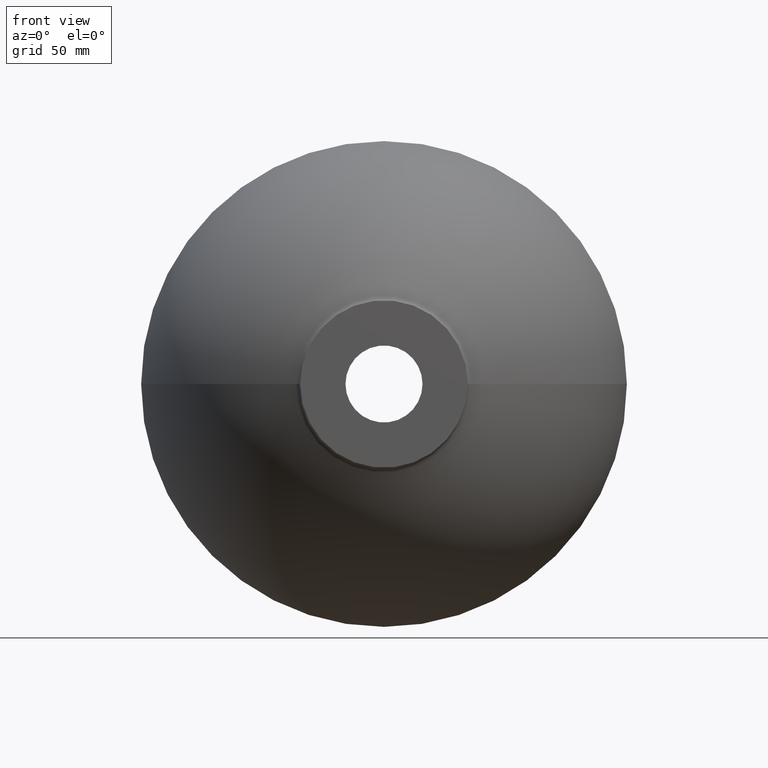
[diagram: clean part render]
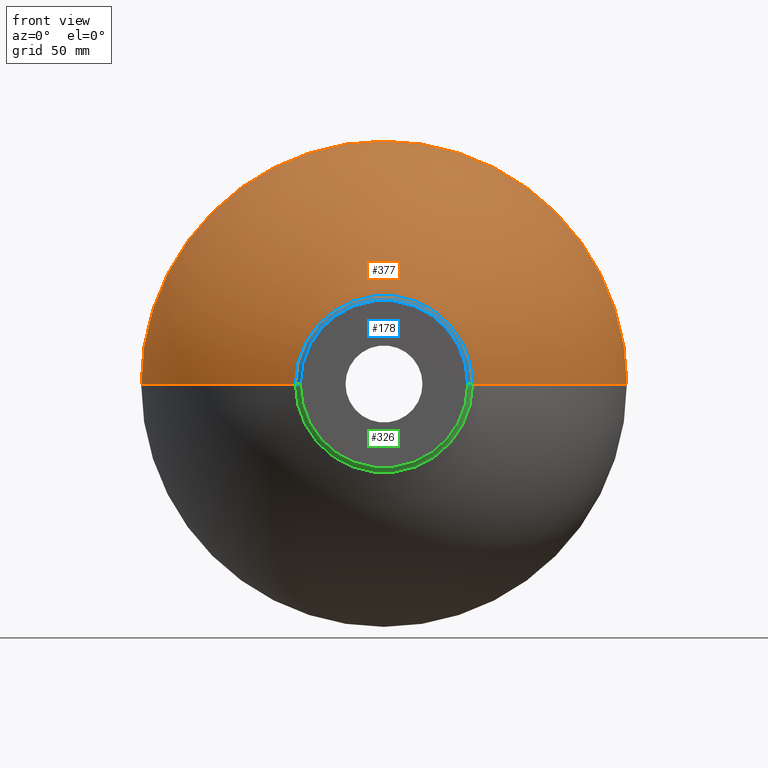
[diagram: same view with three faces highlighted in distinct colors, each labeled with its STEP entity id]
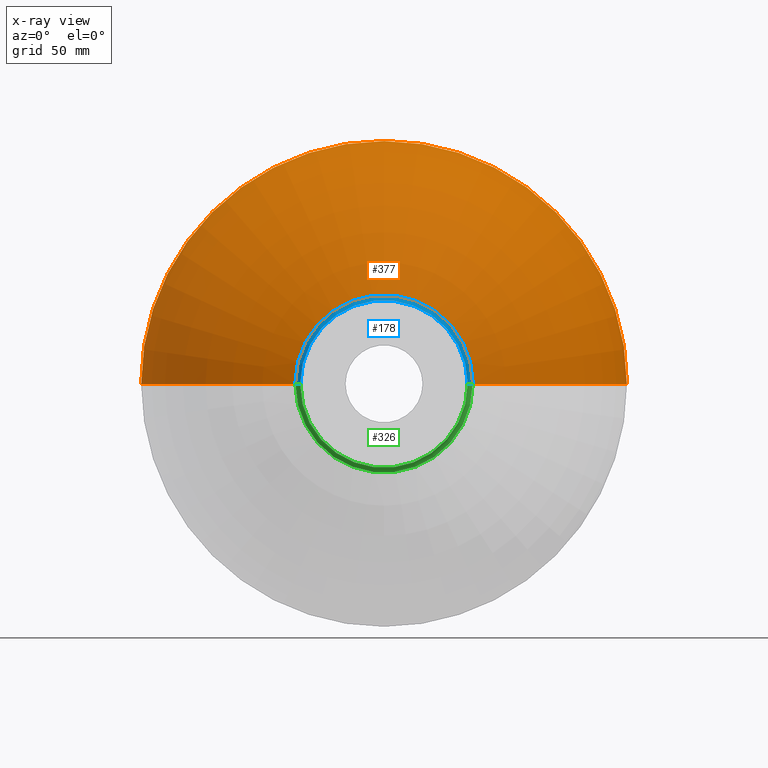
[diagram: x-ray of the same camera — body ghosted, the three highlighted faces saturated]
A machine part, front view with three faces highlighted in distinct colors.
The next image is the same camera in x-ray (body ghosted, the three faces saturated) — at least one of them is partly hidden behind the body in this view.
Their STEP definitions:

[orange] entity #377 — the highlighted toroidal blend (fillet) surface has major radius 13.1579 mm and minor (blend) radius 158.158 mm.
#2 = CARTESIAN_POINT ( 'NONE',  ( -52.91129032258071900, 6.303157817668902000, 0.0000000000000000000 ) ) ;
#17 = DIRECTION ( 'NONE',  ( -1.224646799147353200E-016, -1.352972573047500600E-032, 1.000000000000000000 ) ) ;
#19 = EDGE_CURVE ( 'NONE', #139, #449, #87, .T. ) ;
#26 = CARTESIAN_POINT ( 'NONE',  ( -2.694001388746044600E-015, 150.0000000000000000, 0.0000000000000000000 ) ) ;
#30 = DIRECTION ( 'NONE',  ( -1.104785946437366900E-016, 1.000000000000000000, -0.0000000000000000000 ) ) ;
#31 = CARTESIAN_POINT ( 'NONE',  ( -13.15789473684206400, 150.0000000000000000, -1.611377367299143200E-015 ) ) ;
#44 = AXIS2_PLACEMENT_3D ( 'NONE', #397, #370, #337 ) ;
#48 = TOROIDAL_SURFACE ( 'NONE', #436, -13.15789473684206000, 158.1578947368420800 ) ;
#54 = CIRCLE ( 'NONE', #439, 52.91129032258073300 ) ;
#62 = DIRECTION ( 'NONE',  ( -1.000000000000000000, -1.147492742834831600E-016, 0.0000000000000000000 ) ) ;
#84 = DIRECTION ( 'NONE',  ( -1.104785946437366900E-016, 1.000000000000000000, -0.0000000000000000000 ) ) ;
#85 = EDGE_CURVE ( 'NONE', #186, #139, #153, .T. ) ;
#86 = FACE_OUTER_BOUND ( 'NONE', #279, .T. ) ;
#87 = CIRCLE ( 'NONE', #329, 145.0000000000000000 ) ;
#92 = ORIENTED_EDGE ( 'NONE', *, *, #19, .F. ) ;
#139 = VERTEX_POINT ( 'NONE', #358 ) ;
#142 = DIRECTION ( 'NONE',  ( -1.104785946437366900E-016, 1.000000000000000000, -0.0000000000000000000 ) ) ;
#153 = CIRCLE ( 'NONE', #44, 158.1578947368420800 ) ;
#182 = EDGE_CURVE ( 'NONE', #300, #449, #428, .T. ) ;
#185 = ORIENTED_EDGE ( 'NONE', *, *, #430, .T. ) ;
#186 = VERTEX_POINT ( 'NONE', #2 ) ;
#188 = DIRECTION ( 'NONE',  ( -1.000000000000000000, -1.914177628664062900E-016, 0.0000000000000000000 ) ) ;
#207 = AXIS2_PLACEMENT_3D ( 'NONE', #31, #17, #214 ) ;
#214 = DIRECTION ( 'NONE',  ( 1.000000000000000000, 0.0000000000000000000, 1.224646799147353200E-016 ) ) ;
#215 = CARTESIAN_POINT ( 'NONE',  ( 145.0000000000000000, 150.0000000000000300, 1.775737858763661900E-014 ) ) ;
#238 = ORIENTED_EDGE ( 'NONE', *, *, #85, .F. ) ;
#265 = DIRECTION ( 'NONE',  ( -1.000000000000000000, -1.104785946437366800E-016, 0.0000000000000000000 ) ) ;
#279 = EDGE_LOOP ( 'NONE', ( #185, #418, #92, #238 ) ) ;
#281 = CARTESIAN_POINT ( 'NONE',  ( -3.469446951953614200E-015, 150.0000000000000000, 0.0000000000000000000 ) ) ;
#300 = VERTEX_POINT ( 'NONE', #385 ) ;
#329 = AXIS2_PLACEMENT_3D ( 'NONE', #26, #30, #188 ) ;
#337 = DIRECTION ( 'NONE',  ( -1.000000000000000000, 0.0000000000000000000, 0.0000000000000000000 ) ) ;
#357 = CARTESIAN_POINT ( 'NONE',  ( 1.318142379030071500E-014, 6.303157817668908300, 0.0000000000000000000 ) ) ;
#358 = CARTESIAN_POINT ( 'NONE',  ( -145.0000000000000000, 149.9999999999999700, 0.0000000000000000000 ) ) ;
#370 = DIRECTION ( 'NONE',  ( 0.0000000000000000000, -0.0000000000000000000, -1.000000000000000000 ) ) ;
#377 = ADVANCED_FACE ( 'NONE', ( #86 ), #48, .T. ) ;
#385 = CARTESIAN_POINT ( 'NONE',  ( 52.91129032258075400, 6.303157817668914500, 1.211857141043355500E-014 ) ) ;
#397 = CARTESIAN_POINT ( 'NONE',  ( 13.15789473684205600, 150.0000000000000000, 0.0000000000000000000 ) ) ;
#418 = ORIENTED_EDGE ( 'NONE', *, *, #182, .T. ) ;
#428 = CIRCLE ( 'NONE', #207, 158.1578947368420800 ) ;
#430 = EDGE_CURVE ( 'NONE', #186, #300, #54, .T. ) ;
#436 = AXIS2_PLACEMENT_3D ( 'NONE', #281, #84, #265 ) ;
#439 = AXIS2_PLACEMENT_3D ( 'NONE', #357, #142, #62 ) ;
#449 = VERTEX_POINT ( 'NONE', #215 ) ;

[blue] entity #178 — the highlighted toroidal blend (fillet) surface has major radius 55 mm and minor (blend) radius 5 mm.
#2 = CARTESIAN_POINT ( 'NONE',  ( -52.91129032258071900, 6.303157817668902000, 0.0000000000000000000 ) ) ;
#7 = DIRECTION ( 'NONE',  ( 0.0000000000000000000, -0.0000000000000000000, -1.000000000000000000 ) ) ;
#23 = EDGE_CURVE ( 'NONE', #300, #193, #325, .T. ) ;
#32 = AXIS2_PLACEMENT_3D ( 'NONE', #360, #187, #303 ) ;
#46 = CARTESIAN_POINT ( 'NONE',  ( 50.00000000000004300, 1.760329196264057000, 6.123233995736769200E-015 ) ) ;
#54 = CIRCLE ( 'NONE', #439, 52.91129032258073300 ) ;
#62 = DIRECTION ( 'NONE',  ( -1.000000000000000000, -1.147492742834831600E-016, 0.0000000000000000000 ) ) ;
#119 = DIRECTION ( 'NONE',  ( -1.000000000000000000, -1.104785946437366900E-016, 0.0000000000000000000 ) ) ;
#142 = DIRECTION ( 'NONE',  ( -1.104785946437366900E-016, 1.000000000000000000, -0.0000000000000000000 ) ) ;
#144 = AXIS2_PLACEMENT_3D ( 'NONE', #272, #302, #119 ) ;
#160 = VERTEX_POINT ( 'NONE', #452 ) ;
#165 = AXIS2_PLACEMENT_3D ( 'NONE', #355, #209, #454 ) ;
#178 = ADVANCED_FACE ( 'NONE', ( #348 ), #242, .F. ) ;
#186 = VERTEX_POINT ( 'NONE', #2 ) ;
#187 = DIRECTION ( 'NONE',  ( -1.224646799147353200E-016, -1.352972573047500600E-032, 1.000000000000000000 ) ) ;
#193 = VERTEX_POINT ( 'NONE', #46 ) ;
#209 = DIRECTION ( 'NONE',  ( -1.104785946437366900E-016, 1.000000000000000000, -0.0000000000000000000 ) ) ;
#221 = EDGE_CURVE ( 'NONE', #186, #160, #222, .T. ) ;
#222 = CIRCLE ( 'NONE', #282, 5.000000000000004400 ) ;
#239 = EDGE_LOOP ( 'NONE', ( #328, #304, #444, #317 ) ) ;
#242 = TOROIDAL_SURFACE ( 'NONE', #144, 55.00000000000002800, 5.000000000000002700 ) ;
#272 = CARTESIAN_POINT ( 'NONE',  ( 1.387778780781445700E-014, 1.760329196264053300, 0.0000000000000000000 ) ) ;
#282 = AXIS2_PLACEMENT_3D ( 'NONE', #344, #7, #361 ) ;
#300 = VERTEX_POINT ( 'NONE', #385 ) ;
#302 = DIRECTION ( 'NONE',  ( -1.104785946437366900E-016, 1.000000000000000000, -0.0000000000000000000 ) ) ;
#303 = DIRECTION ( 'NONE',  ( 1.000000000000000000, 0.0000000000000000000, 1.224646799147352500E-016 ) ) ;
#304 = ORIENTED_EDGE ( 'NONE', *, *, #430, .F. ) ;
#317 = ORIENTED_EDGE ( 'NONE', *, *, #378, .T. ) ;
#325 = CIRCLE ( 'NONE', #32, 5.000000000000004400 ) ;
#328 = ORIENTED_EDGE ( 'NONE', *, *, #23, .F. ) ;
#338 = CIRCLE ( 'NONE', #165, 50.00000000000002100 ) ;
#344 = CARTESIAN_POINT ( 'NONE',  ( -55.00000000000001400, 1.760329196264047300, 0.0000000000000000000 ) ) ;
#348 = FACE_OUTER_BOUND ( 'NONE', #239, .T. ) ;
#355 = CARTESIAN_POINT ( 'NONE',  ( 1.368330911210086600E-014, 1.760329196264051700, 0.0000000000000000000 ) ) ;
#357 = CARTESIAN_POINT ( 'NONE',  ( 1.318142379030071500E-014, 6.303157817668908300, 0.0000000000000000000 ) ) ;
#360 = CARTESIAN_POINT ( 'NONE',  ( 55.00000000000004300, 1.760329196264059500, 6.735557395310446600E-015 ) ) ;
#361 = DIRECTION ( 'NONE',  ( -1.000000000000000000, 0.0000000000000000000, 0.0000000000000000000 ) ) ;
#378 = EDGE_CURVE ( 'NONE', #160, #193, #338, .T. ) ;
#385 = CARTESIAN_POINT ( 'NONE',  ( 52.91129032258075400, 6.303157817668914500, 1.211857141043355500E-014 ) ) ;
#430 = EDGE_CURVE ( 'NONE', #186, #300, #54, .T. ) ;
#439 = AXIS2_PLACEMENT_3D ( 'NONE', #357, #142, #62 ) ;
#444 = ORIENTED_EDGE ( 'NONE', *, *, #221, .T. ) ;
#452 = CARTESIAN_POINT ( 'NONE',  ( -50.00000000000000700, 1.760329196264046200, 0.0000000000000000000 ) ) ;
#454 = DIRECTION ( 'NONE',  ( -1.000000000000000000, -1.084202172485503900E-016, 0.0000000000000000000 ) ) ;

[green] entity #326 — the highlighted toroidal blend (fillet) surface has major radius 55 mm and minor (blend) radius 5 mm.
#2 = CARTESIAN_POINT ( 'NONE',  ( -52.91129032258071900, 6.303157817668902000, 0.0000000000000000000 ) ) ;
#7 = DIRECTION ( 'NONE',  ( 0.0000000000000000000, -0.0000000000000000000, -1.000000000000000000 ) ) ;
#23 = EDGE_CURVE ( 'NONE', #300, #193, #325, .T. ) ;
#32 = AXIS2_PLACEMENT_3D ( 'NONE', #360, #187, #303 ) ;
#39 = EDGE_CURVE ( 'NONE', #300, #186, #200, .T. ) ;
#46 = CARTESIAN_POINT ( 'NONE',  ( 50.00000000000004300, 1.760329196264057000, 6.123233995736769200E-015 ) ) ;
#149 = CARTESIAN_POINT ( 'NONE',  ( 1.368330911210086600E-014, 1.760329196264051700, 0.0000000000000000000 ) ) ;
#152 = DIRECTION ( 'NONE',  ( -1.000000000000000000, -1.104785946437366900E-016, 0.0000000000000000000 ) ) ;
#158 = DIRECTION ( 'NONE',  ( -1.104785946437366900E-016, 1.000000000000000000, -0.0000000000000000000 ) ) ;
#160 = VERTEX_POINT ( 'NONE', #452 ) ;
#164 = AXIS2_PLACEMENT_3D ( 'NONE', #216, #158, #369 ) ;
#186 = VERTEX_POINT ( 'NONE', #2 ) ;
#187 = DIRECTION ( 'NONE',  ( -1.224646799147353200E-016, -1.352972573047500600E-032, 1.000000000000000000 ) ) ;
#193 = VERTEX_POINT ( 'NONE', #46 ) ;
#194 = CARTESIAN_POINT ( 'NONE',  ( 1.387778780781445700E-014, 1.760329196264053300, 0.0000000000000000000 ) ) ;
#195 = EDGE_LOOP ( 'NONE', ( #343, #313, #399, #426 ) ) ;
#200 = CIRCLE ( 'NONE', #164, 52.91129032258073300 ) ;
#216 = CARTESIAN_POINT ( 'NONE',  ( 1.318142379030071500E-014, 6.303157817668908300, 0.0000000000000000000 ) ) ;
#221 = EDGE_CURVE ( 'NONE', #186, #160, #222, .T. ) ;
#222 = CIRCLE ( 'NONE', #282, 5.000000000000004400 ) ;
#255 = FACE_OUTER_BOUND ( 'NONE', #195, .T. ) ;
#270 = CIRCLE ( 'NONE', #410, 50.00000000000002100 ) ;
#282 = AXIS2_PLACEMENT_3D ( 'NONE', #344, #7, #361 ) ;
#287 = TOROIDAL_SURFACE ( 'NONE', #374, 55.00000000000002800, 5.000000000000002700 ) ;
#300 = VERTEX_POINT ( 'NONE', #385 ) ;
#303 = DIRECTION ( 'NONE',  ( 1.000000000000000000, 0.0000000000000000000, 1.224646799147352500E-016 ) ) ;
#313 = ORIENTED_EDGE ( 'NONE', *, *, #23, .T. ) ;
#325 = CIRCLE ( 'NONE', #32, 5.000000000000004400 ) ;
#326 = ADVANCED_FACE ( 'NONE', ( #255 ), #287, .F. ) ;
#343 = ORIENTED_EDGE ( 'NONE', *, *, #39, .F. ) ;
#344 = CARTESIAN_POINT ( 'NONE',  ( -55.00000000000001400, 1.760329196264047300, 0.0000000000000000000 ) ) ;
#352 = DIRECTION ( 'NONE',  ( -1.000000000000000000, -1.084202172485503900E-016, 0.0000000000000000000 ) ) ;
#356 = DIRECTION ( 'NONE',  ( -1.104785946437366900E-016, 1.000000000000000000, -0.0000000000000000000 ) ) ;
#360 = CARTESIAN_POINT ( 'NONE',  ( 55.00000000000004300, 1.760329196264059500, 6.735557395310446600E-015 ) ) ;
#361 = DIRECTION ( 'NONE',  ( -1.000000000000000000, 0.0000000000000000000, 0.0000000000000000000 ) ) ;
#369 = DIRECTION ( 'NONE',  ( -1.000000000000000000, -1.147492742834831600E-016, 0.0000000000000000000 ) ) ;
#374 = AXIS2_PLACEMENT_3D ( 'NONE', #194, #453, #152 ) ;
#385 = CARTESIAN_POINT ( 'NONE',  ( 52.91129032258075400, 6.303157817668914500, 1.211857141043355500E-014 ) ) ;
#399 = ORIENTED_EDGE ( 'NONE', *, *, #434, .T. ) ;
#410 = AXIS2_PLACEMENT_3D ( 'NONE', #149, #356, #352 ) ;
#426 = ORIENTED_EDGE ( 'NONE', *, *, #221, .F. ) ;
#434 = EDGE_CURVE ( 'NONE', #193, #160, #270, .T. ) ;
#452 = CARTESIAN_POINT ( 'NONE',  ( -50.00000000000000700, 1.760329196264046200, 0.0000000000000000000 ) ) ;
#453 = DIRECTION ( 'NONE',  ( -1.104785946437366900E-016, 1.000000000000000000, -0.0000000000000000000 ) ) ;